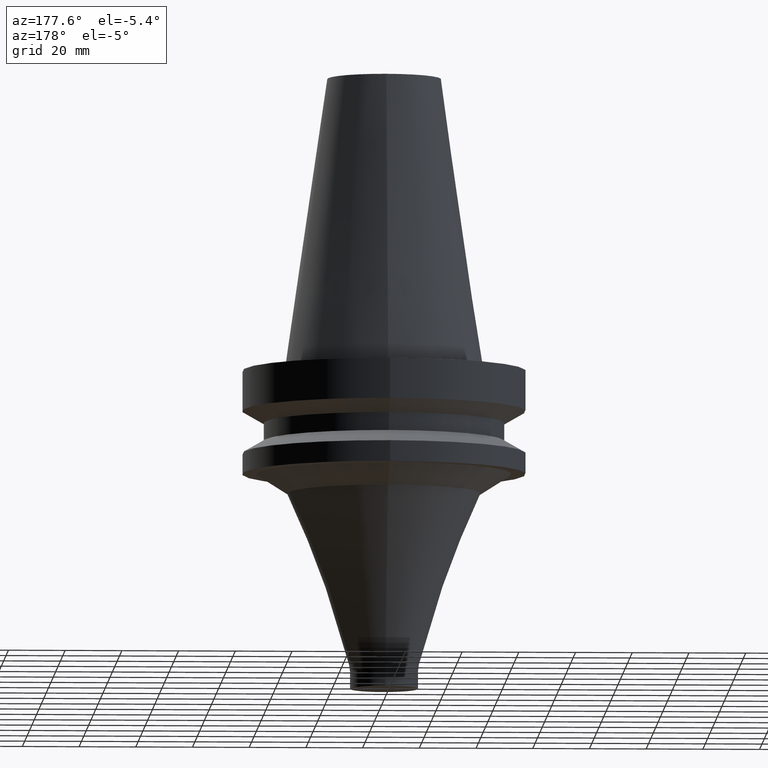
[diagram: clean part render]
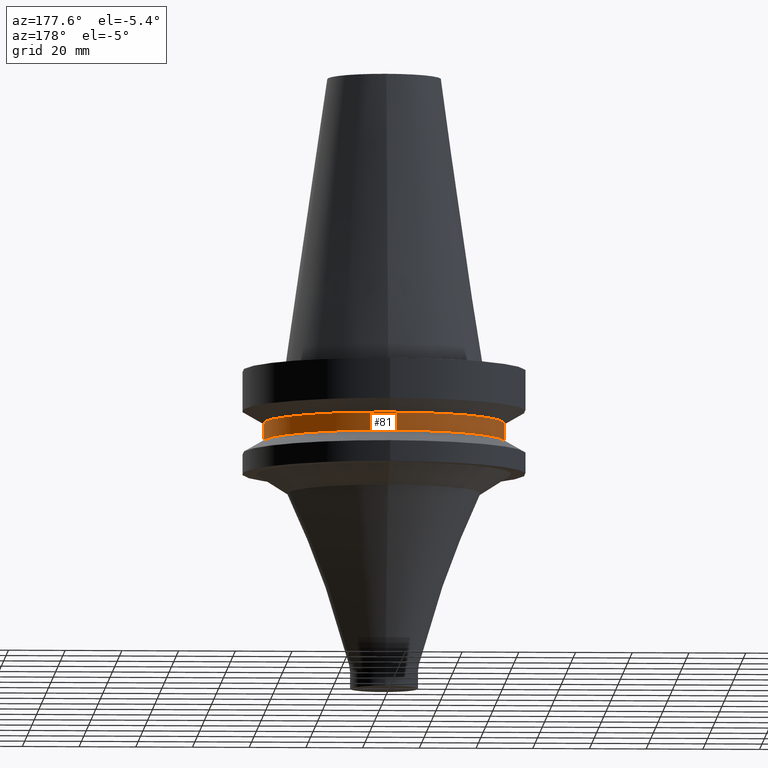
[diagram: same view with one face highlighted and labeled with its STEP entity id]
A machine part, auxiliary view. The second image highlights one B-rep face of the part: STEP entity #81.
In plain terms, the highlighted cylindrical surface (bore or boss wall) has radius 42.5 mm, axis along (-0, -0, 1).
Its self-contained STEP definition (entity closure, byte-faithful):
#81=ADVANCED_FACE('',(#108,#109),#110,.T.);
#108=FACE_BOUND('',#151,.T.);
#109=FACE_BOUND('',#152,.T.);
#110=CYLINDRICAL_SURFACE('',#153,42.5000000000002);
#151=EDGE_LOOP('',(#206));
#152=EDGE_LOOP('',(#207));
#153=AXIS2_PLACEMENT_3D('',#208,#209,#210);
#206=ORIENTED_EDGE('',*,*,#256,.F.);
#207=ORIENTED_EDGE('',*,*,#255,.T.);
#208=CARTESIAN_POINT('',(1.42059028701091E-015,-2.73001417402701E-014,-23.1999999999997));
#209=DIRECTION('',(-6.12323399573677E-017,-4.47533550436228E-016,1.0));
#210=DIRECTION('',(-3.22306792334079E-032,1.0,4.47533550436228E-016));
#255=EDGE_CURVE('',#274,#274,#275,.T.);
#256=EDGE_CURVE('',#276,#276,#277,.T.);
#274=VERTEX_POINT('',#302);
#275=CIRCLE('',#303,42.5000000000003);
#276=VERTEX_POINT('',#304);
#277=CIRCLE('',#305,42.5000000000001);
#302=CARTESIAN_POINT('',(1.22649154701188E-015,42.5000000000003,-20.0301270189219));
#303=AXIS2_PLACEMENT_3D('',#335,#336,#337);
#304=CARTESIAN_POINT('',(1.61468902700994E-015,42.5000000000001,-26.3698729810775));
#305=AXIS2_PLACEMENT_3D('',#338,#339,#340);
#335=CARTESIAN_POINT('',(1.22649154701188E-015,-2.87187662499238E-014,-20.0301270189219));
#336=DIRECTION('',(6.12323399573677E-017,4.47533550436228E-016,-1.0));
#337=DIRECTION('',(-3.22306792334079E-032,1.0,4.47533550436228E-016));
#338=CARTESIAN_POINT('',(1.61468902700994E-015,-2.58815172306165E-014,-26.3698729810775));
#339=DIRECTION('',(6.12323399573677E-017,4.47533550436228E-016,-1.0));
#340=DIRECTION('',(-3.22306792334079E-032,1.0,4.47533550436228E-016));